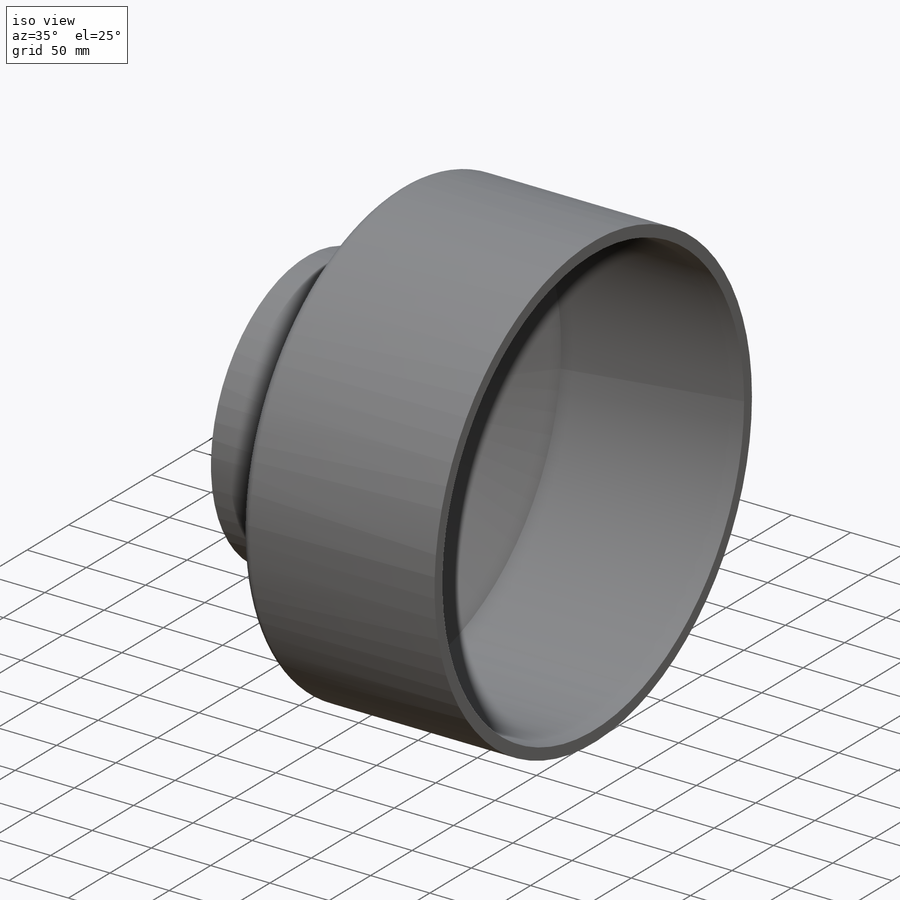
[diagram: iso view]
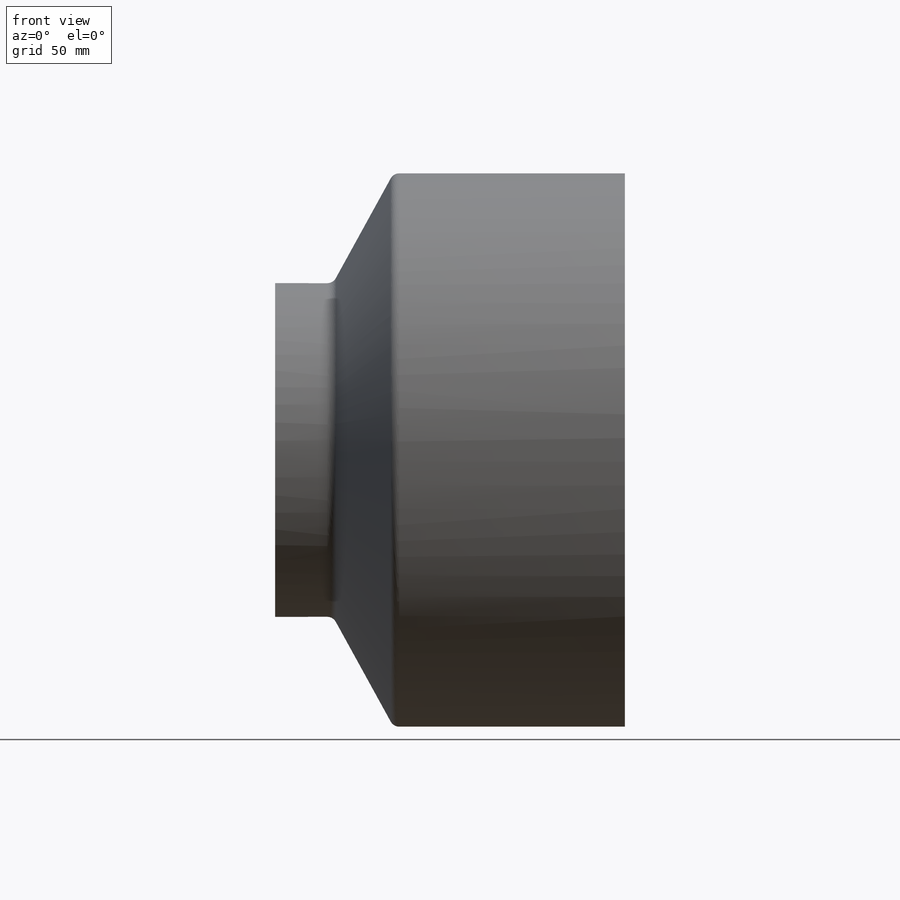
[diagram: front view]
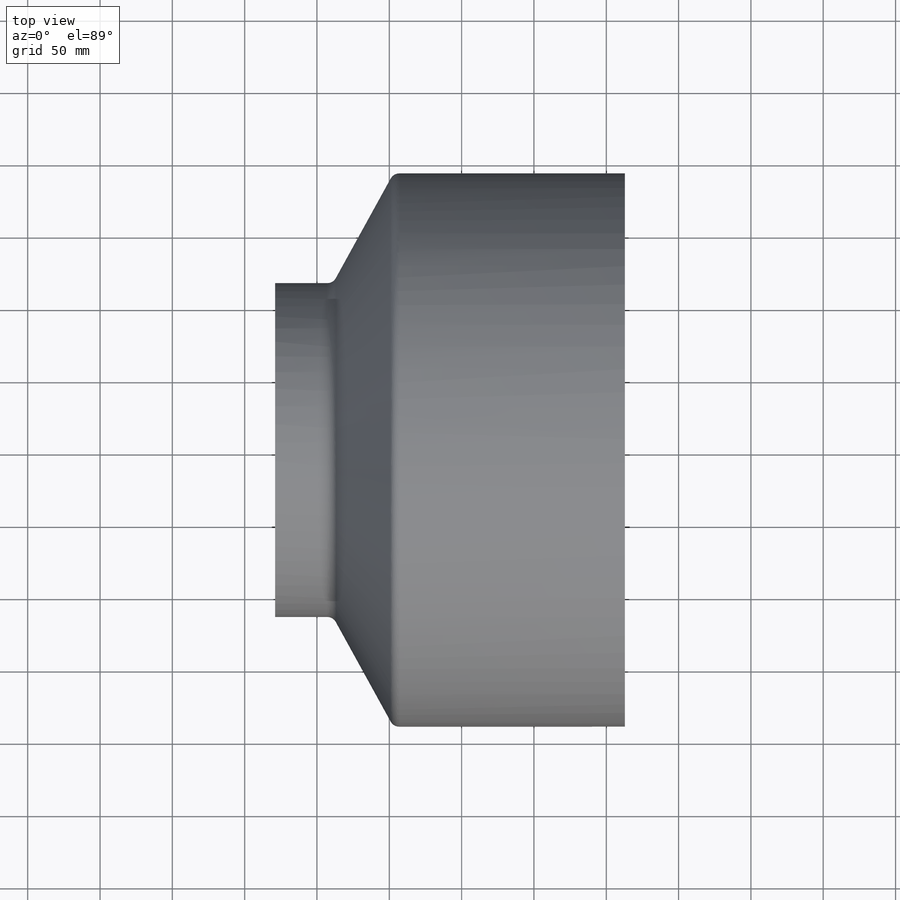
[diagram: top view]
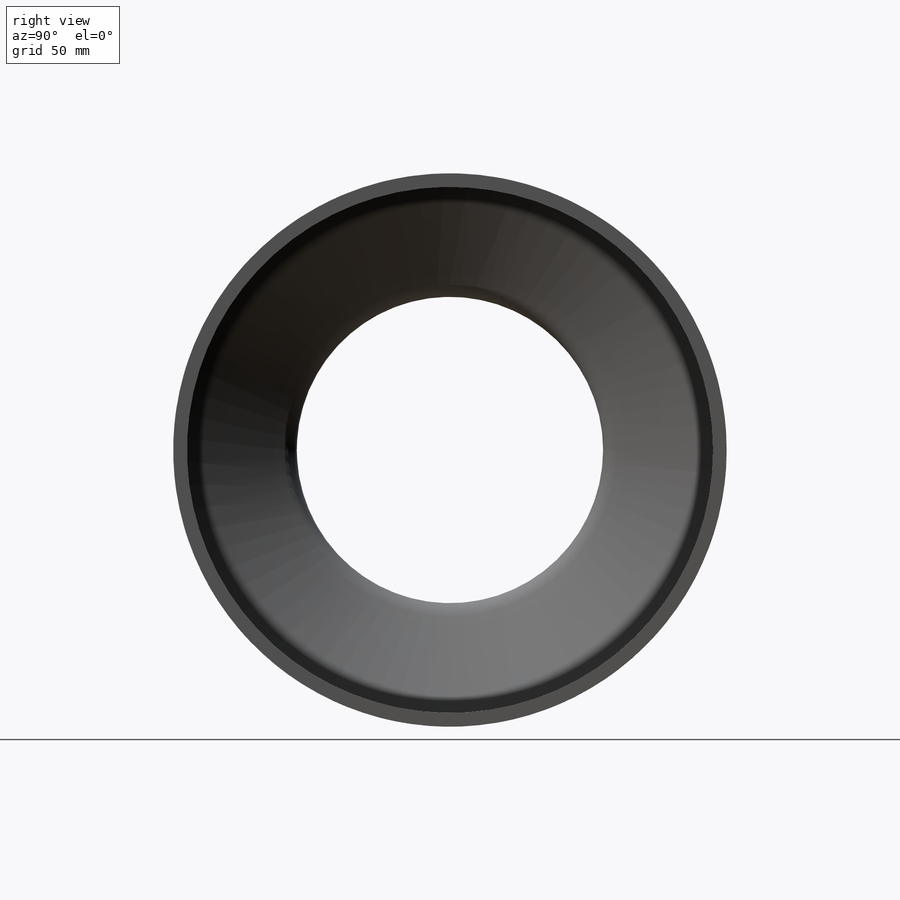
[diagram: right view]
SOLIDWORKS PART (.sldprt)
format: sldprt  version: not decoded by parser v0  size: 717,824 bytes
history: native  units: mm
features: sketch x6, plane x3, cut_extrude x2, extrude x2, material x1, revolve x1 + 2 further entries (+12 scaffold rows collapsed)
feature tree (29):
  scaffold x12  (default folders/planes/origin — collapsed)
  material  "Material <not specified>"
  plane  "Plane1"
  plane  "Plane2"
  plane  "Plane3"
  "Axis2"
  "Axis3"
  sketch  "Sketch1"  dims[c1.D9=3.0mm c1.D10=4.0mm c1.D2=6.7625mm c1.D7=4.5mm c1.D1=2.5mm c2.D2=~42.935967mm c3.D2=50.0deg c3.D3=~91.177867mm c4.D2=~100.269623mm c5.D2=~62.654091deg c5.D3=191.2625mm c5.D4=~104.165277mm c5.D5=125.0mm c5.D6=~60.834723mm c6.D4=188.0mm c6.D6=~46.36475mm c6.D1=~5.35288mm c6.D7=14.0mm c7.D1=6.5mm c7.D8=110.0mm c8.D1=~193.33025mm c8.D11=~14.60465mm c8.D6=~57.012213mm c9.D1=~14.686707mm c9.D5=117.5mm c9.D7=1.0mm c10.D5=~120.108474mm c10.D7=~74.340574mm c11.D7=~60.301597deg c11.D1=191.7625mm c11.D3=~57.012213mm c11.D4=~80.17119mm c12.D4=~61.150849deg c12.D5=~3.646559mm c12.D6=115.675mm c12.D7=188.0mm c12.D8=~7.106883mm c12.D2=1.5mm c12.D1=360.0deg c12.D3=9.525mm c13.D4=1.0mm c13.D7=0.0mm]
  sketch  "Sketch81"  dims[D1=24.9mm D2=180.0mm]
  cut_extrude  "Extrude1"  [1 undecoded]
  sketch  "Sketch82"  dims[D1=0.0mm]
  extrude  "Boss-Extrude1"  Depth=25.4mm
  sketch  "Sketch83"  dims[D1=0.0mm]
  extrude  "Boss-Extrude2"  Depth=25.4mm
  sketch  "Sketch86"  dims[D1=70.0mm D2=270.0mm D3=220.0mm]
  cut_extrude  "Cut-Extrude3"  [1 undecoded]
  sketch  "Sketch87"  dims[D1=0.0mm]
  revolve  "Revolve1"  Angle=180deg
decode coverage: 9 of 11 modeling features carry decoded parameters; 2 rows unclassified (native names shown)
note: ~ marks probable driven/reference dimensions
note: 2 parameter values undecoded
note: suppression state not decoded; provenance and decode notes live in map.json
